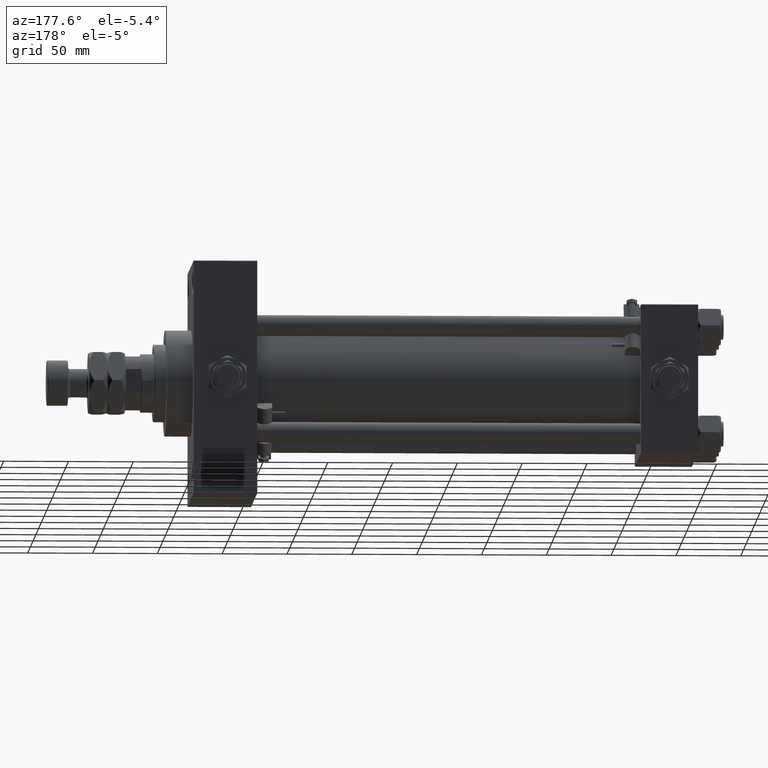
[diagram: clean part render]
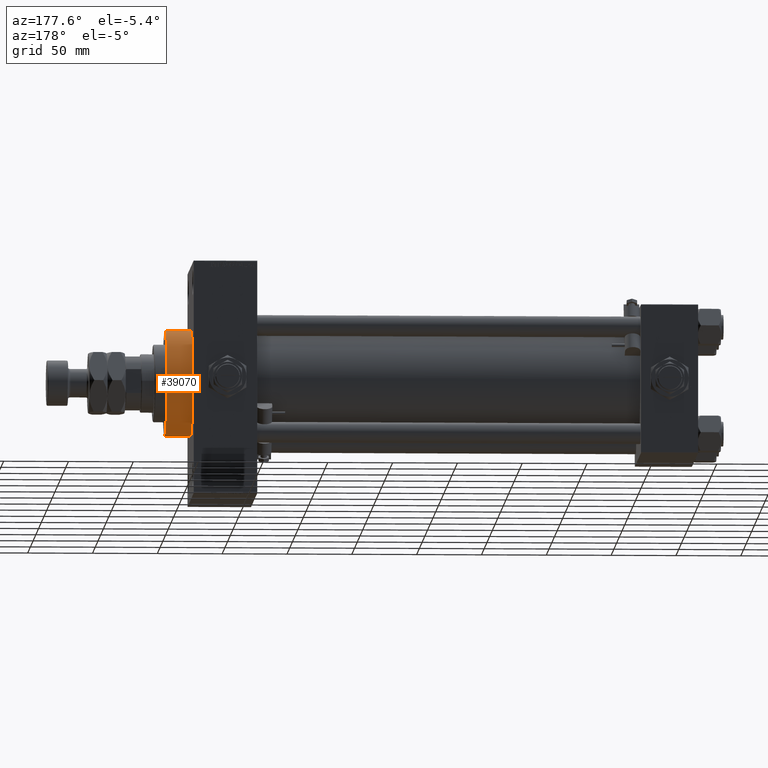
[diagram: same view with one face highlighted and labeled with its STEP entity id]
A machine part, auxiliary view. The second image highlights one B-rep face of the part: STEP entity #39070.
In plain terms, the highlighted cylindrical surface (partial cylindrical patch) has radius 41 mm, axis along (-1, -0, -0).
Its self-contained STEP definition (entity closure, byte-faithful):
#3757 = DIRECTION ( 'NONE',  ( 1.000000000000000000, 0.000000000000000000, 0.000000000000000000 ) ) ;
#5907 = AXIS2_PLACEMENT_3D ( 'NONE', #27184, #3757, #43405 ) ;
#6941 = ORIENTED_EDGE ( 'NONE', *, *, #41174, .F. ) ;
#7754 = VERTEX_POINT ( 'NONE', #51538 ) ;
#9205 = ORIENTED_EDGE ( 'NONE', *, *, #20473, .T. ) ;
#9272 = CARTESIAN_POINT ( 'NONE',  ( 409.0000000000000000, 0.000000000000000000, 0.000000000000000000 ) ) ;
#10072 = EDGE_CURVE ( 'NONE', #47688, #34812, #52299, .T. ) ;
#10619 = AXIS2_PLACEMENT_3D ( 'NONE', #9272, #41729, #30537 ) ;
#11198 = DIRECTION ( 'NONE',  ( -1.000000000000000000, -0.000000000000000000, -0.000000000000000000 ) ) ;
#12895 = EDGE_LOOP ( 'NONE', ( #28383, #16466, #9205, #6941 ) ) ;
#13803 = FACE_OUTER_BOUND ( 'NONE', #12895, .T. ) ;
#15291 = LINE ( 'NONE', #20089, #42144 ) ;
#15985 = LINE ( 'NONE', #52132, #46361 ) ;
#16466 = ORIENTED_EDGE ( 'NONE', *, *, #38550, .T. ) ;
#18672 = CARTESIAN_POINT ( 'NONE',  ( 388.9999999999999432, 5.021051876504148963E-15, -41.00000000000000000 ) ) ;
#20089 = CARTESIAN_POINT ( 'NONE',  ( 409.0000000000000000, 5.021051876504148963E-15, -41.00000000000000000 ) ) ;
#20473 = EDGE_CURVE ( 'NONE', #47885, #7754, #25436, .T. ) ;
#25436 = CIRCLE ( 'NONE', #5907, 41.00000000000000000 ) ;
#27184 = CARTESIAN_POINT ( 'NONE',  ( 388.9999999999999432, 0.000000000000000000, 0.000000000000000000 ) ) ;
#28383 = ORIENTED_EDGE ( 'NONE', *, *, #10072, .F. ) ;
#29238 = CYLINDRICAL_SURFACE ( 'NONE', #10619, 41.00000000000000000 ) ;
#30537 = DIRECTION ( 'NONE',  ( 0.000000000000000000, 0.000000000000000000, 1.000000000000000000 ) ) ;
#32812 = AXIS2_PLACEMENT_3D ( 'NONE', #49090, #37385, #49611 ) ;
#34812 = VERTEX_POINT ( 'NONE', #40841 ) ;
#37385 = DIRECTION ( 'NONE',  ( 1.000000000000000000, 0.000000000000000000, 0.000000000000000000 ) ) ;
#38550 = EDGE_CURVE ( 'NONE', #47688, #47885, #15291, .T. ) ;
#39070 = ADVANCED_FACE ( 'NONE', ( #13803 ), #29238, .T. ) ;
#40841 = CARTESIAN_POINT ( 'NONE',  ( 409.0000000000000000, 0.000000000000000000, 41.00000000000000000 ) ) ;
#41174 = EDGE_CURVE ( 'NONE', #34812, #7754, #15985, .T. ) ;
#41729 = DIRECTION ( 'NONE',  ( -1.000000000000000000, -0.000000000000000000, -0.000000000000000000 ) ) ;
#42144 = VECTOR ( 'NONE', #44005, 1000.000000000000000 ) ;
#43405 = DIRECTION ( 'NONE',  ( 0.000000000000000000, 0.000000000000000000, -1.000000000000000000 ) ) ;
#44005 = DIRECTION ( 'NONE',  ( -1.000000000000000000, -0.000000000000000000, -0.000000000000000000 ) ) ;
#44243 = CARTESIAN_POINT ( 'NONE',  ( 409.0000000000000000, 5.021051876504148963E-15, -41.00000000000000000 ) ) ;
#46361 = VECTOR ( 'NONE', #11198, 1000.000000000000000 ) ;
#47688 = VERTEX_POINT ( 'NONE', #44243 ) ;
#47885 = VERTEX_POINT ( 'NONE', #18672 ) ;
#49090 = CARTESIAN_POINT ( 'NONE',  ( 409.0000000000000000, 0.000000000000000000, 0.000000000000000000 ) ) ;
#49611 = DIRECTION ( 'NONE',  ( 0.000000000000000000, 0.000000000000000000, -1.000000000000000000 ) ) ;
#51538 = CARTESIAN_POINT ( 'NONE',  ( 388.9999999999999432, 0.000000000000000000, 41.00000000000000000 ) ) ;
#52132 = CARTESIAN_POINT ( 'NONE',  ( 409.0000000000000000, 0.000000000000000000, 41.00000000000000000 ) ) ;
#52299 = CIRCLE ( 'NONE', #32812, 41.00000000000000000 ) ;